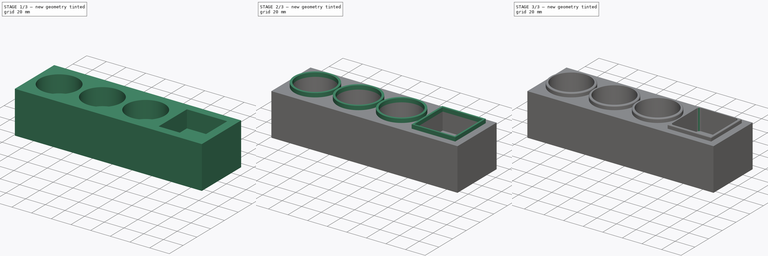
[diagram: build sequence overview — one tinted view per stage of 3, left to right]
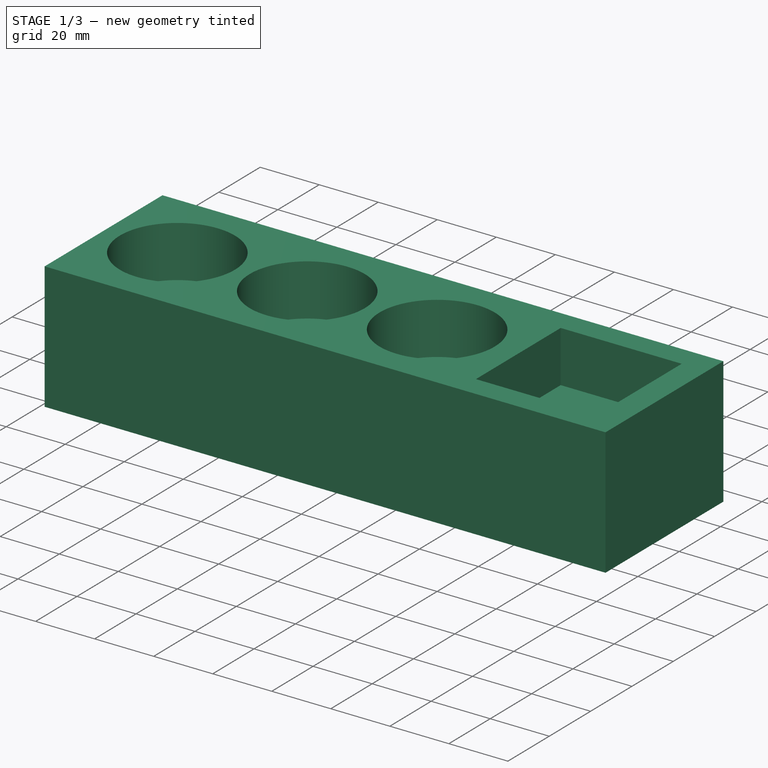
[diagram: stage 1 of 3 — iso view after this stage's code; geometry added in this stage tinted green]
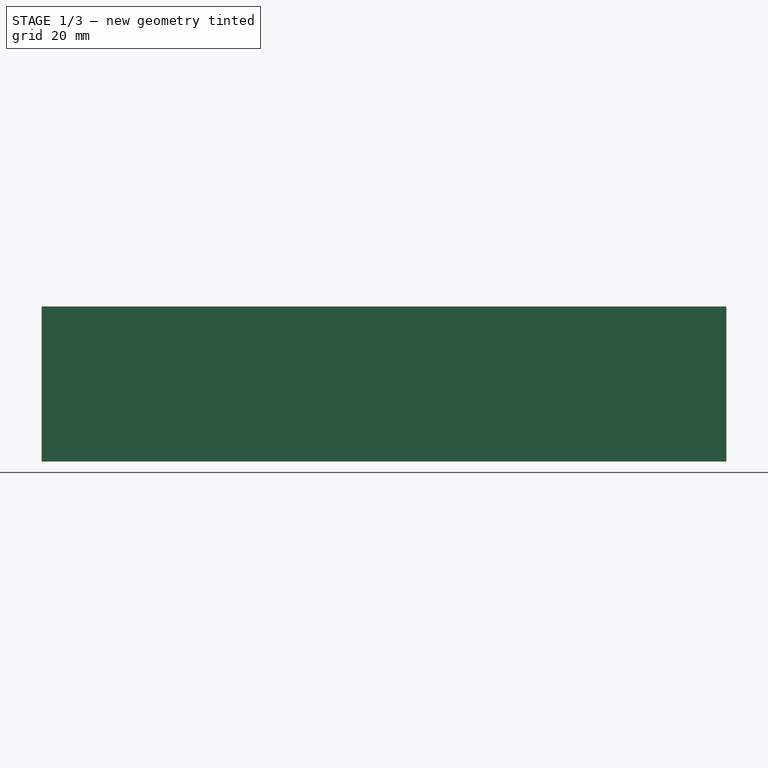
[diagram: stage 1 of 3 — front view after this stage's code; geometry added in this stage tinted green]
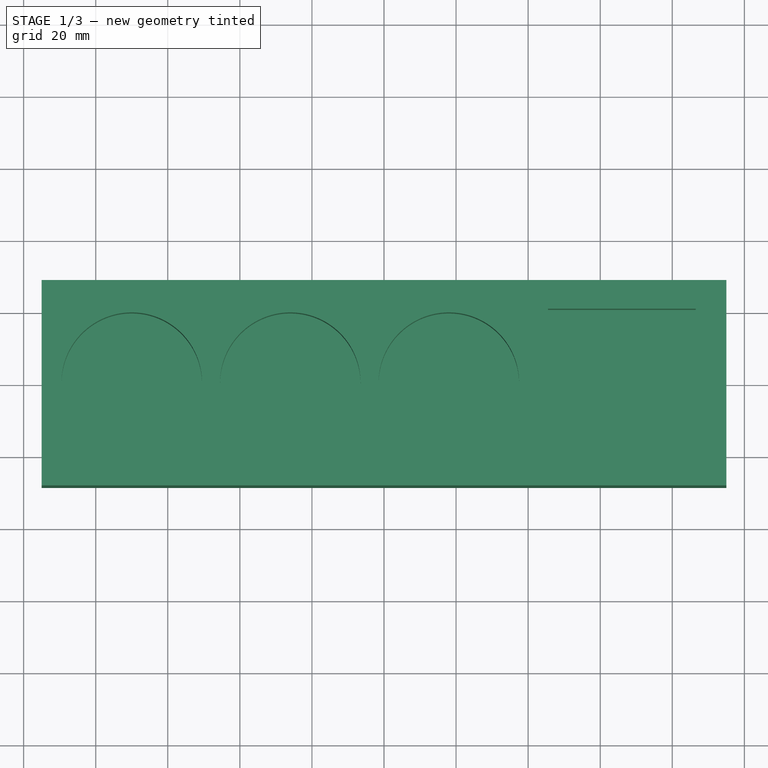
[diagram: stage 1 of 3 — top view after this stage's code; geometry added in this stage tinted green]
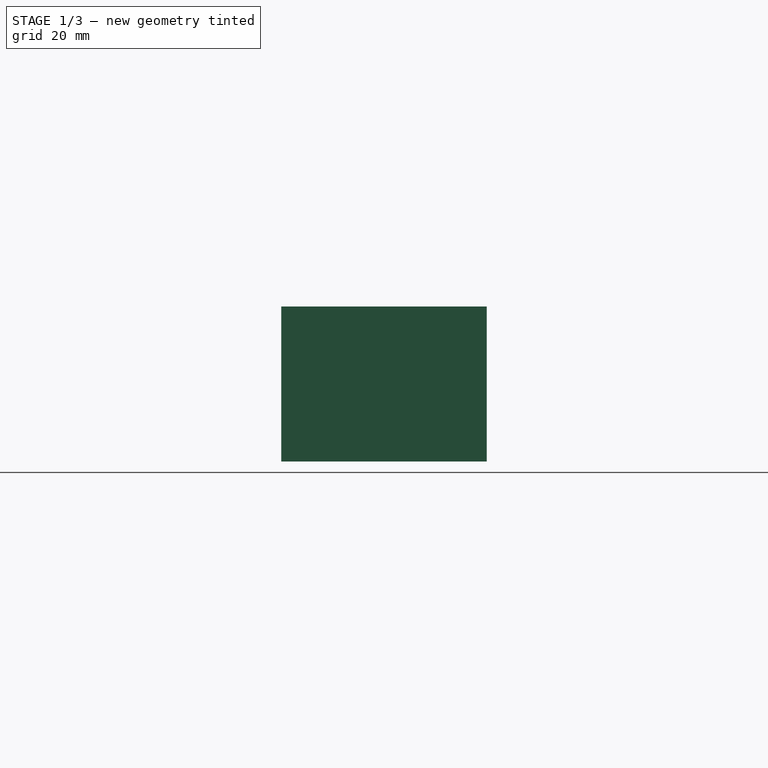
[diagram: stage 1 of 3 — right view after this stage's code; geometry added in this stage tinted green]
FCSTD DOCUMENT  (FreeCAD 0.19R24267 +148 (Git))
Label: socket
License: All rights reserved
LicenseURL: http://en.wikipedia.org/wiki/All_rights_reserved
objects: Sketcher::SketchObject×3, PartDesign::Pad×2, PartDesign::Fillet×2, Spreadsheet::Sheet×1, PartDesign::Pocket×1, PartDesign::Body×1, App::Part×1
note: 14 computed .brp shape members not serialized (recipe doc carries the construction recipe); baked Part::Feature solids carry a one-line shape summary decoded from their .brp

FEATURE [Sketcher::SketchObject] Sketch
  FullyConstrained = true
  MapMode = 5
  Support = -> [XY_Plane001]
  expr: Constraints[11] = <<Parameters>>.height / 2
  expr: Constraints[10] = <<Parameters>>.height / 2
  expr: Constraints[9] = <<Parameters>>.width / 2
  expr: Constraints[8] = <<Parameters>>.width / 2
  sketch-geometry (4):
    g0: LineSegment StartX=-95 StartY=28.5 StartZ=0 EndX=95 EndY=28.5 EndZ=0
    g1: LineSegment StartX=95 StartY=28.5 StartZ=0 EndX=95 EndY=-28.5 EndZ=0
    g2: LineSegment StartX=95 StartY=-28.5 StartZ=0 EndX=-95 EndY=-28.5 EndZ=0
    g3: LineSegment StartX=-95 StartY=-28.5 StartZ=0 EndX=-95 EndY=28.5 EndZ=0
  constraints (12):
    c: Coincident(g0,g1)
    c: Coincident(g1,g2)
    c: Coincident(g2,g3)
    c: Coincident(g3,g0)
    c: Horizontal(g0)
    c: Horizontal(g2)
    c: Vertical(g1)
    c: Vertical(g3)
    c: DistanceX(g0,g-1) = 95
    c: DistanceX(g-1,g0) = 95
    c: DistanceY(g-1,g0) = 28.5
    c: DistanceY(g1,g-1) = 28.5
FEATURE [Spreadsheet::Sheet] Spreadsheet  label="Parameters"
  cells = A1=width; B1(width)=190; A2=height; B2(height)=57; A3=lenght; B3(length)=43; A5=diameter; B5(diameter)=19.5; A6=distance; B6(distance)=
FEATURE [PartDesign::Pad] Pad
  Direction = (1,1,1)
  Length = 43
  Length2 = 100
  Profile = -> Sketch
  Type = 0
  expr: Length = <<Parameters>>.length
FEATURE [Sketcher::SketchObject] Sketch001
  ExternalGeometry = -> [Pad]
  FullyConstrained = true
  MapMode = 5
  Placement = pos=(0,0,43) rot=(0,0,1;0rad)
  Support = -> [Pad]
  sketch-geometry (7):
    g0: Circle CenterX=-70 CenterY=0 CenterZ=0 NormalX=0 NormalY=0 NormalZ=1 AngleXU=0 Radius=19.5
    g1: Circle CenterX=-26 CenterY=0 CenterZ=0 NormalX=0 NormalY=0 NormalZ=1 AngleXU=0 Radius=19.5
    g2: Circle CenterX=18 CenterY=0 CenterZ=0 NormalX=0 NormalY=0 NormalZ=1 AngleXU=0 Radius=19.5
    g3: LineSegment StartX=45.5 StartY=-20.5 StartZ=0 EndX=86.5 EndY=-20.5 EndZ=0
    g4: LineSegment StartX=86.5 StartY=-20.5 StartZ=0 EndX=86.5 EndY=20.5 EndZ=0
    g5: LineSegment StartX=86.5 StartY=20.5 StartZ=0 EndX=45.5 EndY=20.5 EndZ=0
    g6: LineSegment StartX=45.5 StartY=20.5 StartZ=0 EndX=45.5 EndY=-20.5 EndZ=0
  constraints (21):
    c: Radius(g0) = 19.5
    c: Radius(g1) = 19.5
    c: Radius(g2) = 19.5
    c: PointOnObject(g1,g-1)
    c: PointOnObject(g0,g-1)
    c: PointOnObject(g2,g-1)
    c: DistanceX(g0,g1) = 44
    c: DistanceX(g1,g2) = 44
    c: DistanceX(g-3,g0) = 25
    c: Coincident(g3,g4)
    c: Coincident(g4,g5)
    c: Coincident(g5,g6)
    c: Coincident(g6,g3)
    c: Horizontal(g3)
    c: Horizontal(g5)
    c: Vertical(g4)
    c: Vertical(g6)
    c: DistanceY(g4,g4) = 41
    c: DistanceX(g3,g3) = 41
    c: DistanceX(g0,g5) = 115.5
    c: DistanceY(g0,g5) = 20.5
FEATURE [PartDesign::Pocket] Pocket
  BaseFeature = -> Pad
  Length = 17.5
  Length2 = 100
  Profile = -> Sketch001
  Type = 0
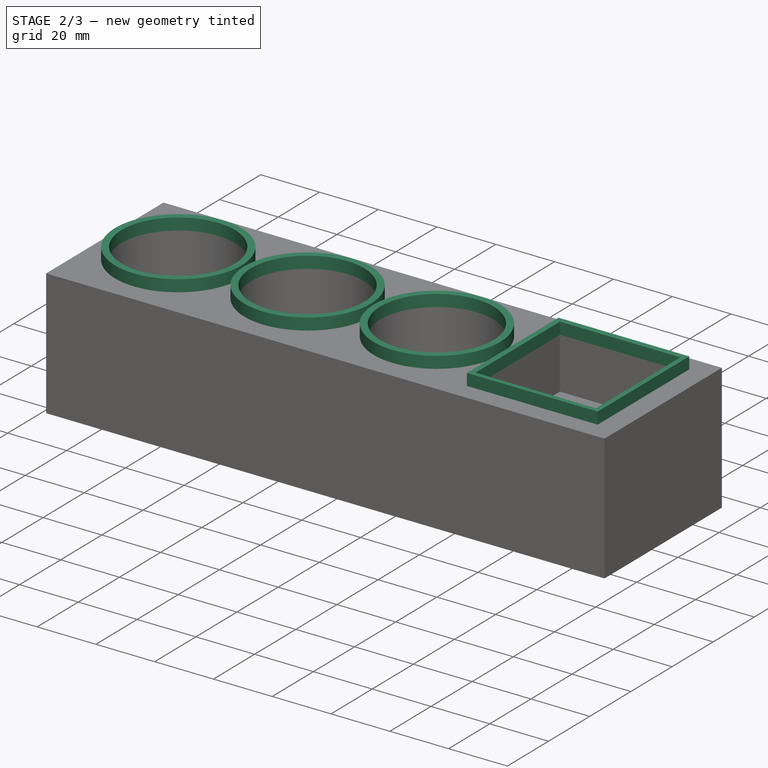
[diagram: stage 2 of 3 — iso view after this stage's code; geometry added in this stage tinted green]
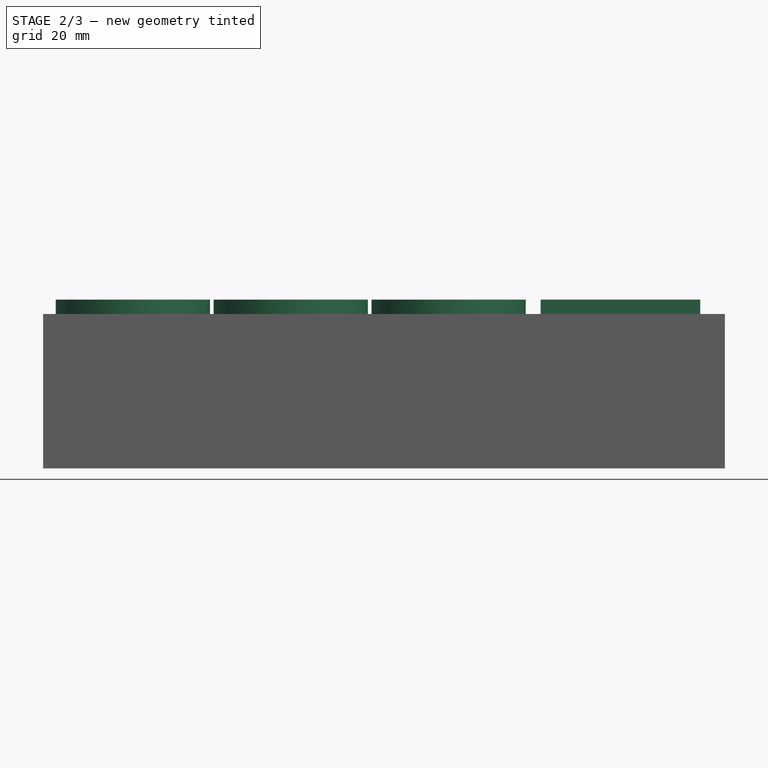
[diagram: stage 2 of 3 — front view after this stage's code; geometry added in this stage tinted green]
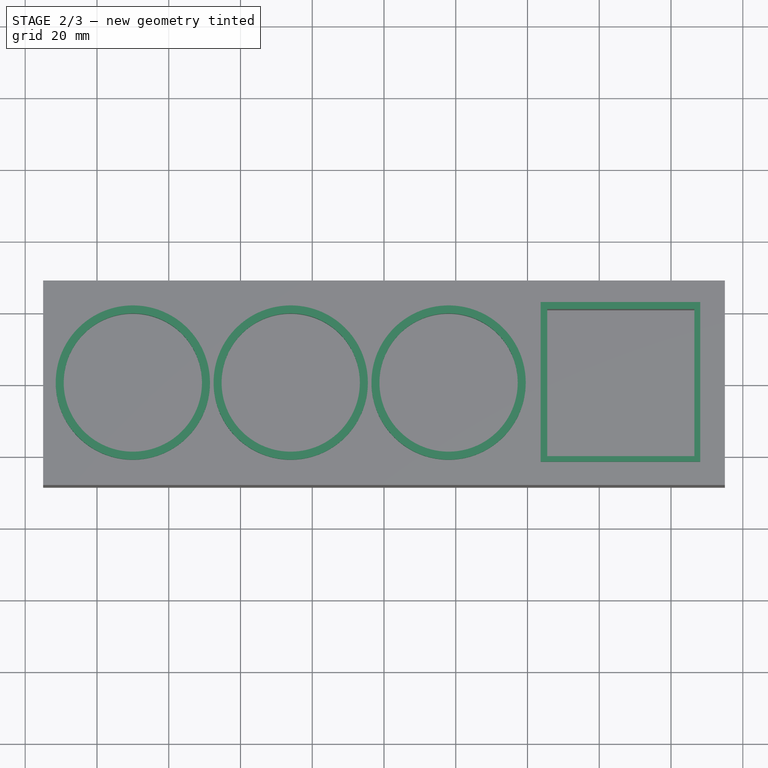
[diagram: stage 2 of 3 — top view after this stage's code; geometry added in this stage tinted green]
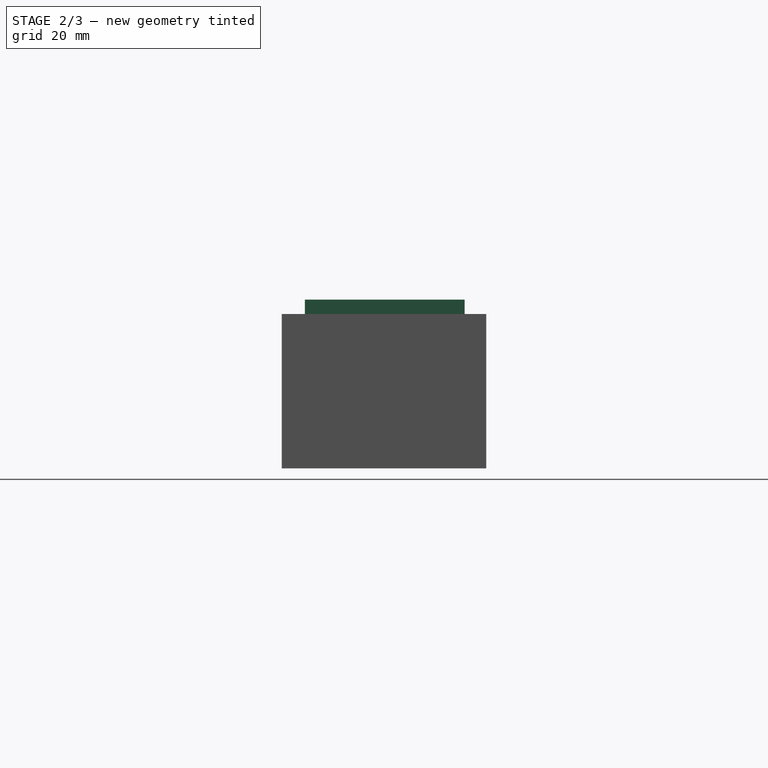
[diagram: stage 2 of 3 — right view after this stage's code; geometry added in this stage tinted green]
FEATURE [Sketcher::SketchObject] Sketch002
  ExternalGeometry = -> [Sketch001]
  FullyConstrained = false
  MapMode = 5
  Placement = pos=(0,0,43) rot=(0,0,1;0rad)
  Support = -> [Pocket]
  sketch-geometry (14):
    g0: Circle CenterX=-70 CenterY=0 CenterZ=0 NormalX=0 NormalY=0 NormalZ=1 AngleXU=0 Radius=21.5
    g1: Circle CenterX=-26 CenterY=0 CenterZ=0 NormalX=0 NormalY=0 NormalZ=1 AngleXU=0 Radius=21.5
    g2: Circle CenterX=18 CenterY=0 CenterZ=0 NormalX=0 NormalY=0 NormalZ=1 AngleXU=0 Radius=21.5
    g3: LineSegment StartX=43.6371 StartY=22.4577 StartZ=0 EndX=88.1371 EndY=22.4577 EndZ=0
    g4: LineSegment StartX=88.1371 StartY=22.4577 StartZ=0 EndX=88.1371 EndY=-22.0423 EndZ=0
    g5: LineSegment StartX=88.1371 StartY=-22.0423 StartZ=0 EndX=43.6371 EndY=-22.0423 EndZ=0
    g6: LineSegment StartX=43.6371 StartY=-22.0423 StartZ=0 EndX=43.6371 EndY=22.4577 EndZ=0
    g7: Circle CenterX=18 CenterY=0 CenterZ=0 NormalX=0 NormalY=0 NormalZ=1 AngleXU=0 Radius=19.2684
    g8: Circle CenterX=-26 CenterY=0 CenterZ=0 NormalX=0 NormalY=0 NormalZ=1 AngleXU=0 Radius=19.2684
    g9: Circle CenterX=-70 CenterY=0 CenterZ=0 NormalX=0 NormalY=0 NormalZ=1 AngleXU=0 Radius=19.2684
    g10: LineSegment StartX=45.5 StartY=20.5 StartZ=0 EndX=86.5 EndY=20.5 EndZ=0
    g11: LineSegment StartX=86.5 StartY=20.5 StartZ=0 EndX=86.5 EndY=-20.5 EndZ=0
    g12: LineSegment StartX=86.5 StartY=-20.5 StartZ=0 EndX=45.5 EndY=-20.5 EndZ=0
    g13: LineSegment StartX=45.5 StartY=-20.5 StartZ=0 EndX=45.5 EndY=20.5 EndZ=0
  constraints (25):
    c: Radius(g0) = 21.5
    c: Equal(g0,g1) = 21.5
    c: Coincident(g3,g4)
    c: Coincident(g4,g5)
    c: Coincident(g5,g6)
    c: Coincident(g6,g3)
    c: Horizontal(g3)
    c: Horizontal(g5)
    c: Vertical(g4)
    c: Vertical(g6)
    c: DistanceY(g4,g4) = 44.5
    c: DistanceX(g5,g5) = 44.5
    c: Coincident(g7,g2)
    c: Coincident(g8,g1)
    c: Coincident(g9,g0)
    c: Coincident(g10,g11)
    c: Coincident(g11,g12)
    c: Coincident(g12,g13)
    c: Coincident(g13,g10)
    c: Horizontal(g10)
    c: Horizontal(g12)
    c: Vertical(g11)
    c: Vertical(g13)
    c: Coincident(g10,g-6)
    c: Coincident(g11,g-5)
FEATURE [PartDesign::Pad] Pad001
  BaseFeature = -> Pocket
  Direction = (1,1,1)
  Length = 4
  Length2 = 100
  Profile = -> Sketch002
  Type = 0
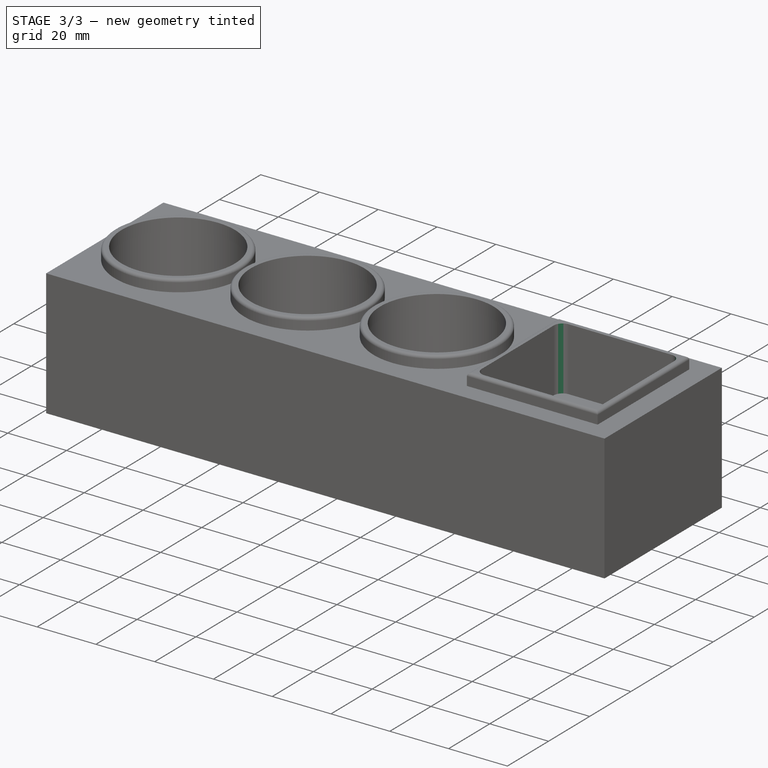
[diagram: stage 3 of 3 — iso view after this stage's code; geometry added in this stage tinted green]
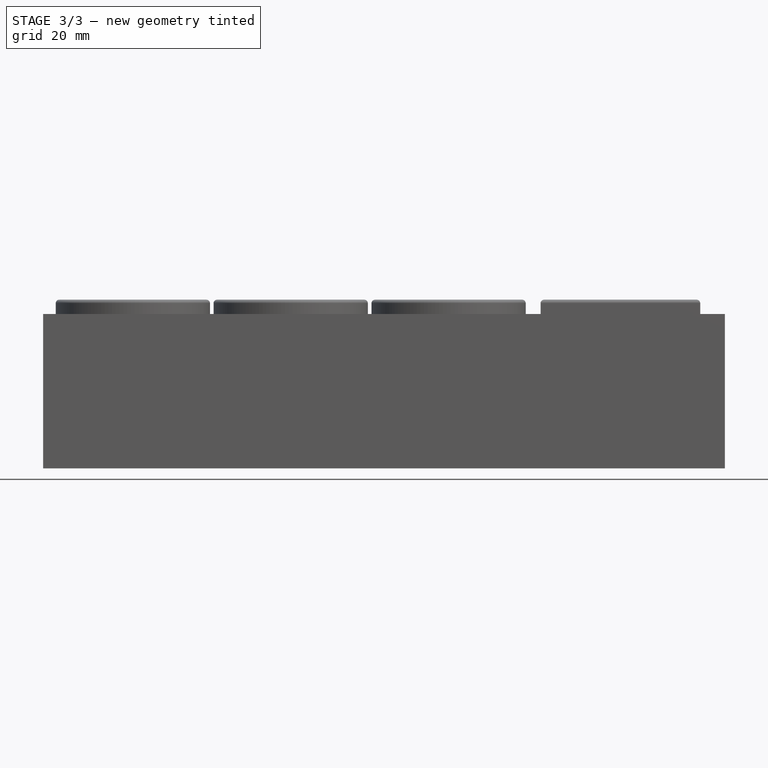
[diagram: stage 3 of 3 — front view after this stage's code; geometry added in this stage tinted green]
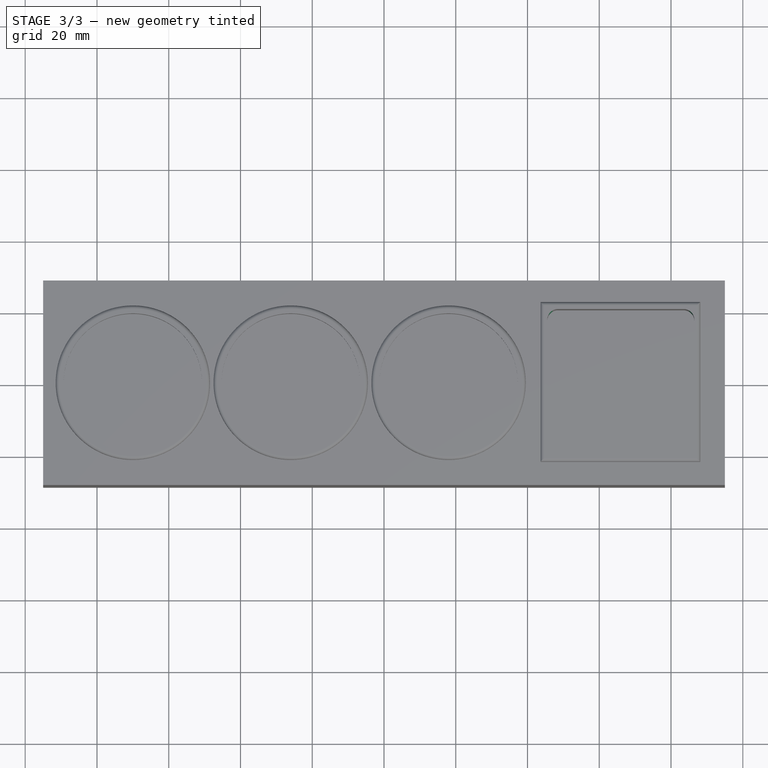
[diagram: stage 3 of 3 — top view after this stage's code; geometry added in this stage tinted green]
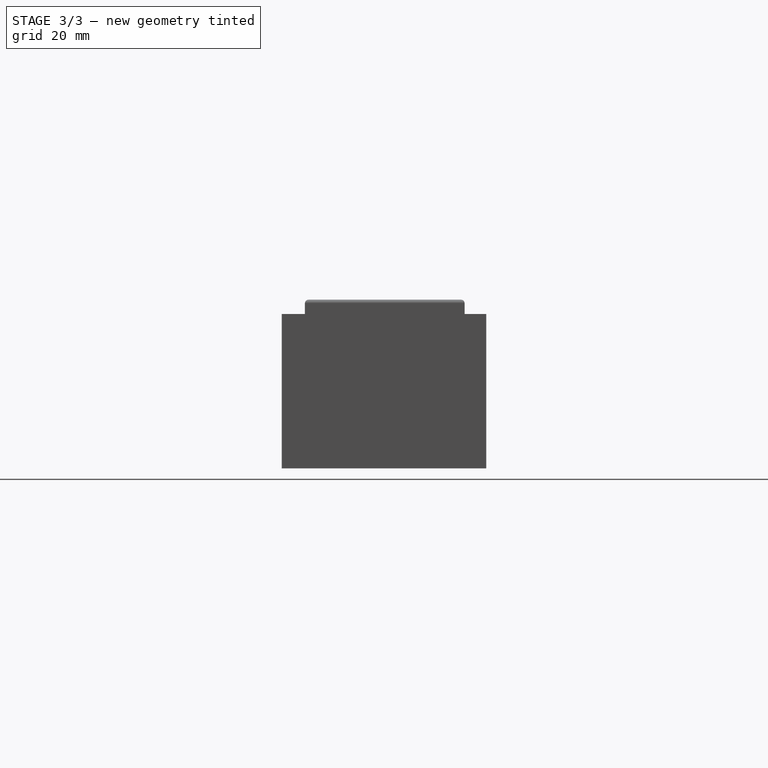
[diagram: stage 3 of 3 — right view after this stage's code; geometry added in this stage tinted green]
FEATURE [PartDesign::Fillet] Fillet
  Base = -> Pad001 [Edge25,Edge23,Edge21,Edge32,Edge30,Edge28,Edge33]
  BaseFeature = -> Pad001
  Radius = 1
  SupportTransform = false
FEATURE [PartDesign::Fillet] Fillet001
  Base = -> Fillet [Edge75,Edge64,Edge74,Edge65,Edge79,Edge77,Edge67,Edge69]
  BaseFeature = -> Fillet
  Radius = 3
  SupportTransform = false
FEATURE [PartDesign::Body] Body
  Group = -> [Sketch,Pad,Sketch001,Pocket,Sketch002,Pad001,Fillet,Fillet001]
  Origin = -> Origin001
  Tip = -> Fillet001
FEATURE [App::Part] Part
  Group = -> [Body]
  Origin = -> Origin
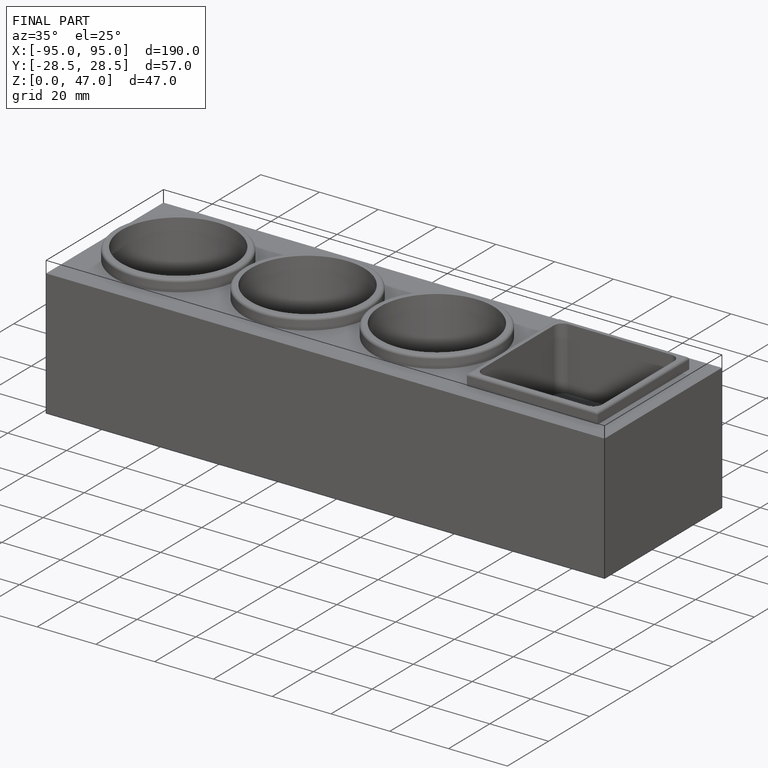
[diagram: finished part — iso view with bounding-box wireframe]
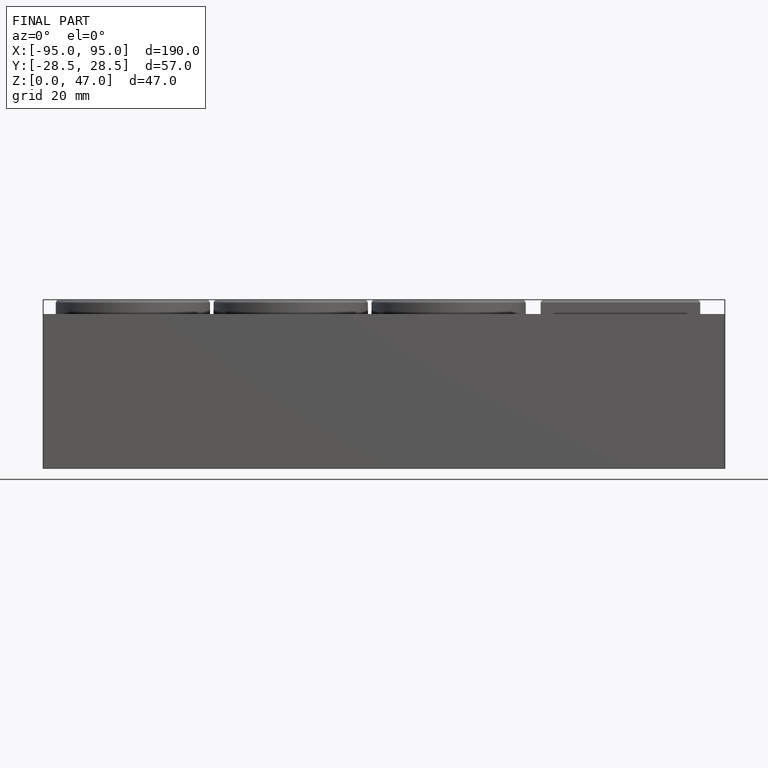
[diagram: finished part — front view with bounding-box wireframe]
